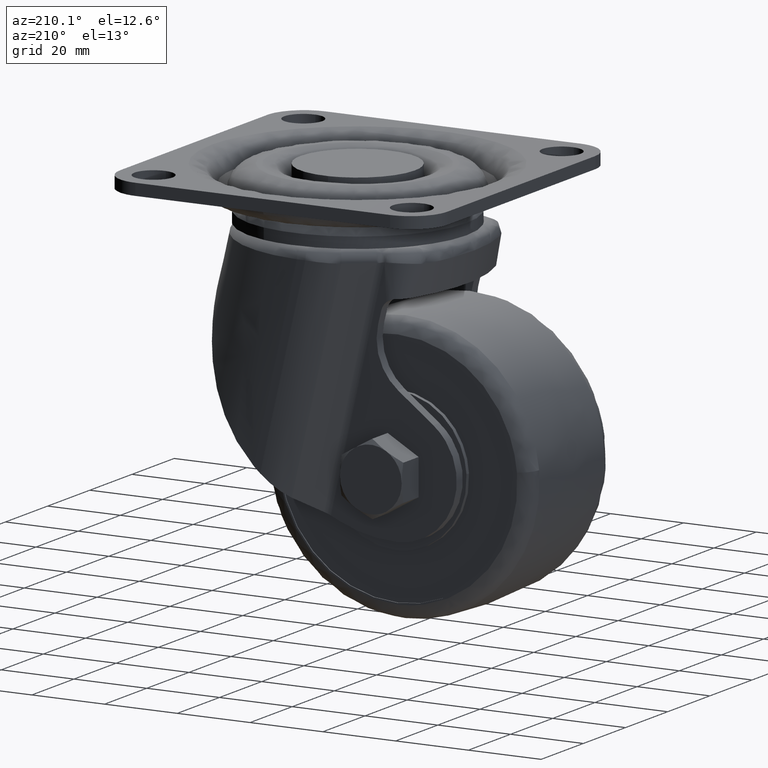
[diagram: clean part render]
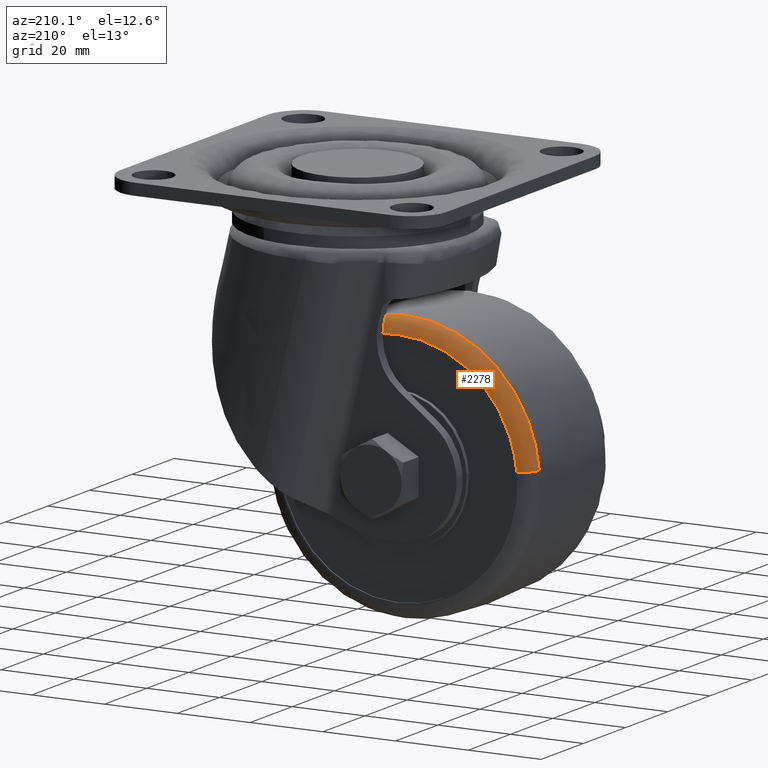
[diagram: same view with one face highlighted and labeled with its STEP entity id]
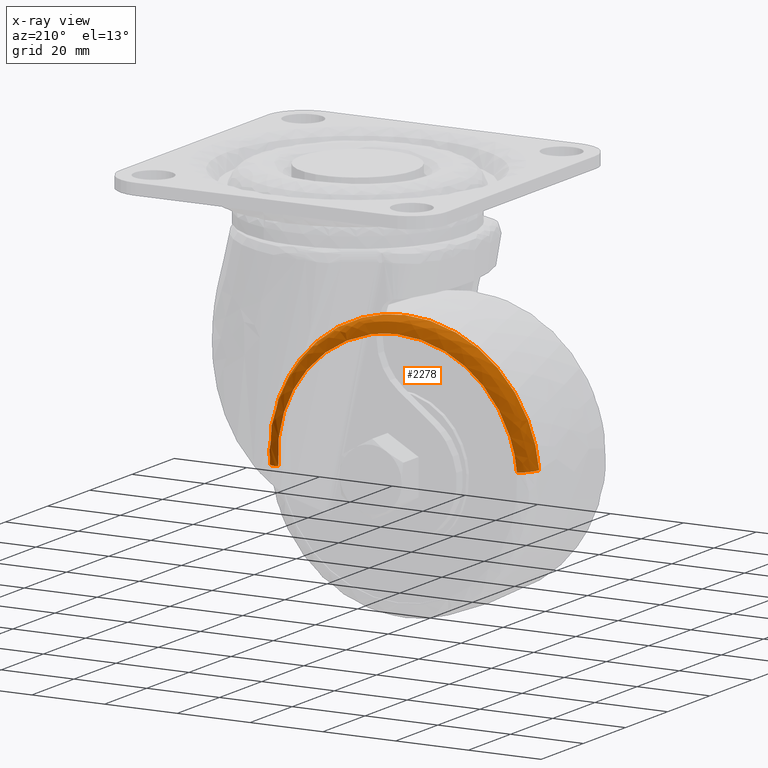
[diagram: x-ray of the same camera — body ghosted, the highlighted face saturated]
A machine part, auxiliary view. The second image highlights one B-rep face of the part: STEP entity #2278.
The next image is the same camera in x-ray: the body ghosted, the highlighted face saturated — about 0% of this face is hidden behind the body in this view.
In plain terms, the highlighted face is a freeform B-spline surface patch.
Its self-contained STEP definition (entity closure, byte-faithful):
#2069=CARTESIAN_POINT('',(14.770724452030590,15.306126676629290,-71.742890423072211));
#2070=VERTEX_POINT('',#2069);
#2084=CARTESIAN_POINT('',(-22.0,15.306126688600891,-31.586553899210440));
#2085=VERTEX_POINT('',#2084);
#2086=CARTESIAN_POINT('',(14.770724452030588,15.306126676629288,-71.742890423072211));
#2087=CARTESIAN_POINT('',(14.913446269514763,15.306126676870031,-70.124585846781827));
#2088=CARTESIAN_POINT('',(14.913446273033690,15.306126677133021,-68.499999986489769));
#2089=CARTESIAN_POINT('',(14.913446352989878,15.306126683108557,-31.586553892753443));
#2090=CARTESIAN_POINT('',(-22.0,15.306126688600891,-31.586553899210440));
#2098=(BOUNDED_CURVE()B_SPLINE_CURVE(2,(#2086,#2087,#2088,#2089,#2090),.UNSPECIFIED.,.F.,.U.)B_SPLINE_CURVE_WITH_KNOTS((3,2,3),(0.234718454724046,0.250000000000000,0.500000000000000),.UNSPECIFIED.)CURVE()GEOMETRIC_REPRESENTATION_ITEM()RATIONAL_B_SPLINE_CURVE((0.966381850438441,0.982096556062729,1.0,0.707106781186548,1.0))REPRESENTATION_ITEM(''));
#2099=EDGE_CURVE('',#2070,#2085,#2098,.T.);
#2152=CARTESIAN_POINT('',(-58.770724452030890,15.306126676625340,-65.257109576927775));
#2153=VERTEX_POINT('',#2152);
#2154=CARTESIAN_POINT('',(-22.0,15.306126688600891,-31.586553899210440));
#2155=CARTESIAN_POINT('',(-55.801244706573080,15.306126682602862,-31.586553906261955));
#2156=CARTESIAN_POINT('',(-58.770724452030898,15.306126676625340,-65.257109576927775));
#2164=(BOUNDED_CURVE()B_SPLINE_CURVE(2,(#2154,#2155,#2156),.UNSPECIFIED.,.F.,.U.)B_SPLINE_CURVE_WITH_KNOTS((3,3),(0.500000000000000,0.734718454724062),.UNSPECIFIED.)CURVE()GEOMETRIC_REPRESENTATION_ITEM()RATIONAL_B_SPLINE_CURVE((1.0,0.725010225123800,0.966381850438474))REPRESENTATION_ITEM(''));
#2165=EDGE_CURVE('',#2085,#2153,#2164,.T.);
#2185=CARTESIAN_POINT('',(10.451100699340826,18.991038623498962,-72.278476370724633));
#2186=CARTESIAN_POINT('',(10.490971182984005,18.991038623498959,-71.826389998209322));
#2187=CARTESIAN_POINT('',(13.400315882779383,18.991038623498955,-38.837698325981769));
#2188=CARTESIAN_POINT('',(-19.130992895619414,18.991038623498955,-35.968691221601205));
#2189=CARTESIAN_POINT('',(-51.662301674018209,18.991038623498955,-33.099684117220626));
#2190=CARTESIAN_POINT('',(-54.571646373809592,18.991038623498952,-66.088375789402818));
#2191=CARTESIAN_POINT('',(-54.611516857448848,18.991038623498962,-66.540462161873847));
#2192=CARTESIAN_POINT('',(14.651029416809251,19.274438382241815,-72.767499272126699));
#2193=CARTESIAN_POINT('',(14.696060070234758,19.274438382241815,-72.256902386938947));
#2194=CARTESIAN_POINT('',(17.981941777723485,19.274438382241811,-34.998705196560728));
#2195=CARTESIAN_POINT('',(-18.759676512857908,19.274438382241808,-31.758381709418629));
#2196=CARTESIAN_POINT('',(-55.501294803439286,19.274438382241811,-28.518058222276526));
#2197=CARTESIAN_POINT('',(-58.787176510923487,19.274438382241811,-65.776255412603561));
#2198=CARTESIAN_POINT('',(-58.832207164344581,19.274438382241808,-66.286852297741262));
#2199=CARTESIAN_POINT('',(14.691536835348835,15.038492718044782,-72.772215793923891));
#2200=CARTESIAN_POINT('',(14.736617257513561,15.038492718044777,-72.261054587295177));
#2201=CARTESIAN_POINT('',(18.026130584296862,15.038492718044772,-34.961678924943953));
#2202=CARTESIAN_POINT('',(-18.756095245379584,15.038492718044782,-31.717774170323548));
#2203=CARTESIAN_POINT('',(-55.538321075056039,15.038492718044772,-28.473869415703135));
#2204=CARTESIAN_POINT('',(-58.827834401834842,15.038492718044781,-65.773245078003058));
#2205=CARTESIAN_POINT('',(-58.872914823995153,15.038492718044779,-66.284406284581692));
#2213=(BOUNDED_SURFACE()B_SPLINE_SURFACE(2,2,((#2185,#2192,#2199),(#2186,#2193,#2200),(#2187,#2194,#2201),(#2188,#2195,#2202),(#2189,#2196,#2203),(#2190,#2197,#2204),(#2191,#2198,#2205)),.UNSPECIFIED.,.F.,.F.,.U.)B_SPLINE_SURFACE_WITH_KNOTS((3,1,2,1,3),(3,3),(0.0,1.223586607578394,62.402916982856041,123.582247358133700,124.805833965590100),(0.0,6.899142439934799),.UNSPECIFIED.)GEOMETRIC_REPRESENTATION_ITEM()RATIONAL_B_SPLINE_SURFACE(((0.927874830766946,0.636871900471229,0.927404715225941),(0.922502407701222,0.633184393089253,0.922035014143282),(0.648508831365275,0.445121516619428,0.648180258943656),(0.917129984635498,0.629496885707276,0.916665313060623),(0.648508831365275,0.445121516619428,0.648180258943656),(0.922502407700686,0.633184393088885,0.922035014142747),(0.927874830765875,0.636871900470494,0.927404715224870)))REPRESENTATION_ITEM('')SURFACE());
#2214=ORIENTED_EDGE('',*,*,#2099,.F.);
#2215=CARTESIAN_POINT('',(10.797875894423200,19.0,-71.392516240046859));
#2216=VERTEX_POINT('',#2215);
#2217=CARTESIAN_POINT('',(10.797875894423200,19.000000000000004,-71.392516240046859));
#2218=CARTESIAN_POINT('',(14.488290778601838,19.000000004315627,-71.717981981149720));
#2219=CARTESIAN_POINT('',(14.770724452030590,15.306126676629290,-71.742890423072211));
#2227=(BOUNDED_CURVE()B_SPLINE_CURVE(2,(#2217,#2218,#2219),.UNSPECIFIED.,.F.,.U.)B_SPLINE_CURVE_WITH_KNOTS((3,3),(-1.724331687502174,-0.276955220916635),.UNSPECIFIED.)CURVE()GEOMETRIC_REPRESENTATION_ITEM()RATIONAL_B_SPLINE_CURVE((0.892190726428418,0.654415034231074,0.891768274193680))REPRESENTATION_ITEM(''));
#2228=EDGE_CURVE('',#2216,#2070,#2227,.T.);
#2229=ORIENTED_EDGE('',*,*,#2228,.F.);
#2230=CARTESIAN_POINT('',(-22.0,19.0,-35.574822502319208));
#2231=VERTEX_POINT('',#2230);
#2232=CARTESIAN_POINT('',(10.797875894423202,18.999999999999996,-71.392516240046859));
#2233=CARTESIAN_POINT('',(10.925177499624549,19.000000000000007,-69.949059435182747));
#2234=CARTESIAN_POINT('',(10.925177499580890,19.0,-68.500000000167574));
#2235=CARTESIAN_POINT('',(10.925177498589029,19.000000000000011,-35.574822502399307));
#2236=CARTESIAN_POINT('',(-22.0,19.0,-35.574822502319208));
#2244=(BOUNDED_CURVE()B_SPLINE_CURVE(2,(#2232,#2233,#2234,#2235,#2236),.UNSPECIFIED.,.F.,.U.)B_SPLINE_CURVE_WITH_KNOTS((3,2,3),(0.234718454855756,0.250000000000000,0.500000000000000),.UNSPECIFIED.)CURVE()GEOMETRIC_REPRESENTATION_ITEM()RATIONAL_B_SPLINE_CURVE((0.966381850709328,0.982096556217037,1.0,0.707106781186547,1.0))REPRESENTATION_ITEM(''));
#2245=EDGE_CURVE('',#2216,#2231,#2244,.T.);
#2246=ORIENTED_EDGE('',*,*,#2245,.T.);
#2247=CARTESIAN_POINT('',(-54.797875894423200,19.0,-65.607483759953126));
#2248=VERTEX_POINT('',#2247);
#2249=CARTESIAN_POINT('',(-22.0,19.0,-35.574822502319208));
#2250=CARTESIAN_POINT('',(-52.149229965881837,19.000000000000004,-35.574822502231719));
#2251=CARTESIAN_POINT('',(-54.797875894423200,18.999999999999996,-65.607483759953112));
#2259=(BOUNDED_CURVE()B_SPLINE_CURVE(2,(#2249,#2250,#2251),.UNSPECIFIED.,.F.,.U.)B_SPLINE_CURVE_WITH_KNOTS((3,3),(0.500000000000000,0.734718454855756),.UNSPECIFIED.)CURVE()GEOMETRIC_REPRESENTATION_ITEM()RATIONAL_B_SPLINE_CURVE((1.0,0.725010224969510,0.966381850709328))REPRESENTATION_ITEM(''));
#2260=EDGE_CURVE('',#2231,#2248,#2259,.T.);
#2261=ORIENTED_EDGE('',*,*,#2260,.T.);
#2262=CARTESIAN_POINT('',(-54.797875894423200,19.0,-65.607483759953126));
#2263=CARTESIAN_POINT('',(-58.488290778605503,19.000000004315623,-65.282018018849982));
#2264=CARTESIAN_POINT('',(-58.770724452030883,15.306126676625347,-65.257109576927775));
#2272=(BOUNDED_CURVE()B_SPLINE_CURVE(2,(#2262,#2263,#2264),.UNSPECIFIED.,.F.,.U.)B_SPLINE_CURVE_WITH_KNOTS((3,3),(-1.724331687502173,-0.276955220915580),.UNSPECIFIED.)CURVE()GEOMETRIC_REPRESENTATION_ITEM()RATIONAL_B_SPLINE_CURVE((0.892190726428418,0.654415034230901,0.891768274194026))REPRESENTATION_ITEM(''));
#2273=EDGE_CURVE('',#2248,#2153,#2272,.T.);
#2274=ORIENTED_EDGE('',*,*,#2273,.T.);
#2275=ORIENTED_EDGE('',*,*,#2165,.F.);
#2276=EDGE_LOOP('',(#2214,#2229,#2246,#2261,#2274,#2275));
#2277=FACE_OUTER_BOUND('',#2276,.T.);
#2278=ADVANCED_FACE('',(#2277),#2213,.T.);